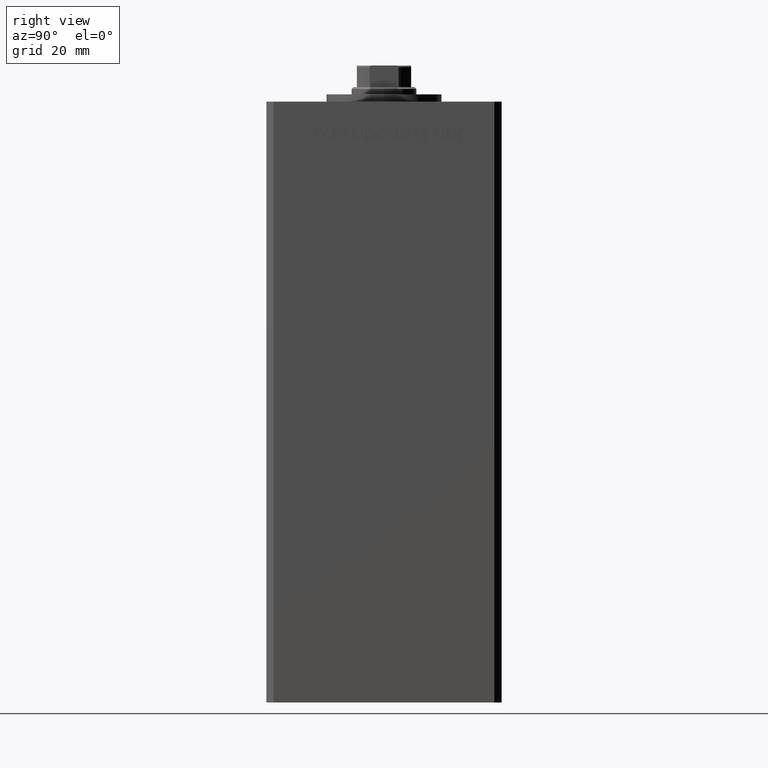
[diagram: clean part render]
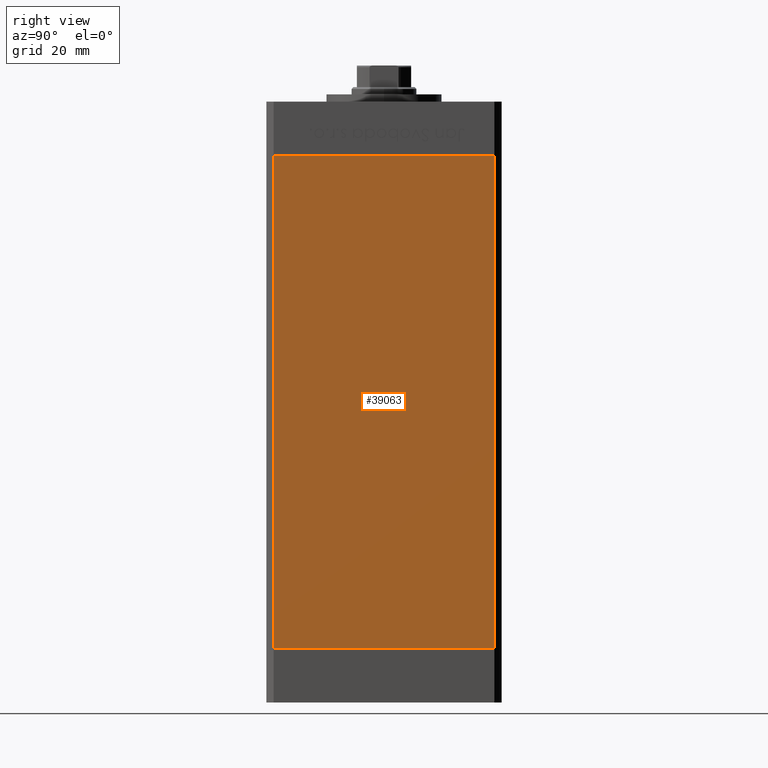
[diagram: same view with one face highlighted and labeled with its STEP entity id]
A machine part, right view. The second image highlights one B-rep face of the part: STEP entity #39063.
In plain terms, the highlighted planar face has unit normal (1, -0, 0).
Its self-contained STEP definition (entity closure, byte-faithful):
#3654 = DIRECTION ( 'NONE',  ( 2.275047181608927644E-16, 1.000000000000000000, 0.000000000000000000 ) ) ;
#3908 = DIRECTION ( 'NONE',  ( 1.000000000000000000, -2.275047181608927644E-16, 0.000000000000000000 ) ) ;
#3943 = VECTOR ( 'NONE', #4483, 1000.000000000000000 ) ;
#3951 = CARTESIAN_POINT ( 'NONE',  ( 37.50000000000000711, 30.50000000000000000, 136.0000000000000000 ) ) ;
#4483 = DIRECTION ( 'NONE',  ( -0.000000000000000000, -0.000000000000000000, -1.000000000000000000 ) ) ;
#5823 = EDGE_CURVE ( 'NONE', #24197, #25227, #12125, .T. ) ;
#6165 = CARTESIAN_POINT ( 'NONE',  ( 37.49999999999999289, -30.50000000000000000, 136.0000000000000000 ) ) ;
#7343 = CARTESIAN_POINT ( 'NONE',  ( 37.50000000000000711, 30.50000000000000000, 136.0000000000000000 ) ) ;
#8998 = EDGE_CURVE ( 'NONE', #24197, #16258, #34651, .T. ) ;
#12125 = LINE ( 'NONE', #3951, #3943 ) ;
#13271 = ORIENTED_EDGE ( 'NONE', *, *, #8998, .T. ) ;
#16258 = VERTEX_POINT ( 'NONE', #23641 ) ;
#16700 = VECTOR ( 'NONE', #51278, 1000.000000000000000 ) ;
#18351 = AXIS2_PLACEMENT_3D ( 'NONE', #7343, #3908, #3654 ) ;
#18421 = CARTESIAN_POINT ( 'NONE',  ( 37.50000000000000711, 30.50000000000000000, 0.000000000000000000 ) ) ;
#19035 = EDGE_CURVE ( 'NONE', #25227, #23790, #22329, .T. ) ;
#19066 = CARTESIAN_POINT ( 'NONE',  ( 37.50000000000000711, 30.50000000000000000, 136.0000000000000000 ) ) ;
#22329 = LINE ( 'NONE', #33716, #22719 ) ;
#22719 = VECTOR ( 'NONE', #42406, 1000.000000000000000 ) ;
#23641 = CARTESIAN_POINT ( 'NONE',  ( 37.49999999999999289, -30.50000000000000000, 136.0000000000000000 ) ) ;
#23790 = VERTEX_POINT ( 'NONE', #42307 ) ;
#24152 = VECTOR ( 'NONE', #37856, 1000.000000000000000 ) ;
#24197 = VERTEX_POINT ( 'NONE', #39318 ) ;
#25227 = VERTEX_POINT ( 'NONE', #18421 ) ;
#26496 = EDGE_LOOP ( 'NONE', ( #46776, #51592, #13271, #44219 ) ) ;
#32406 = EDGE_CURVE ( 'NONE', #16258, #23790, #42331, .T. ) ;
#33716 = CARTESIAN_POINT ( 'NONE',  ( 37.50000000000000711, 30.50000000000000000, 0.000000000000000000 ) ) ;
#34651 = LINE ( 'NONE', #19066, #16700 ) ;
#37856 = DIRECTION ( 'NONE',  ( -0.000000000000000000, -0.000000000000000000, -1.000000000000000000 ) ) ;
#39063 = ADVANCED_FACE ( 'NONE', ( #40073 ), #47480, .T. ) ;
#39318 = CARTESIAN_POINT ( 'NONE',  ( 37.50000000000000711, 30.50000000000000000, 136.0000000000000000 ) ) ;
#40073 = FACE_OUTER_BOUND ( 'NONE', #26496, .T. ) ;
#42307 = CARTESIAN_POINT ( 'NONE',  ( 37.49999999999999289, -30.50000000000000000, 0.000000000000000000 ) ) ;
#42331 = LINE ( 'NONE', #6165, #24152 ) ;
#42406 = DIRECTION ( 'NONE',  ( -2.275047181608927644E-16, -1.000000000000000000, 0.000000000000000000 ) ) ;
#44219 = ORIENTED_EDGE ( 'NONE', *, *, #32406, .T. ) ;
#46776 = ORIENTED_EDGE ( 'NONE', *, *, #19035, .F. ) ;
#47480 = PLANE ( 'NONE',  #18351 ) ;
#51278 = DIRECTION ( 'NONE',  ( -2.275047181608927644E-16, -1.000000000000000000, 0.000000000000000000 ) ) ;
#51592 = ORIENTED_EDGE ( 'NONE', *, *, #5823, .F. ) ;